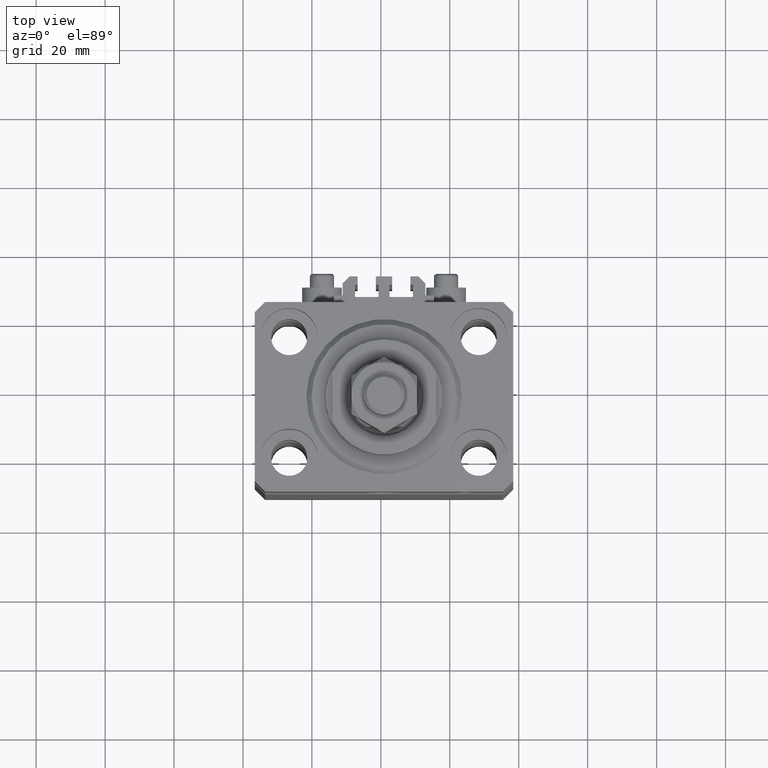
[diagram: clean part render]
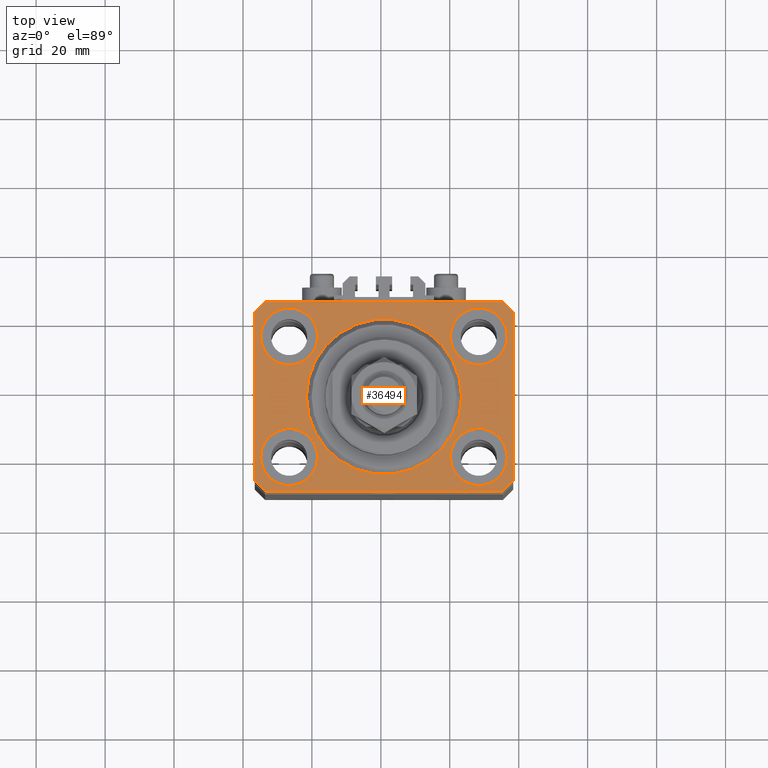
[diagram: same view with one face highlighted and labeled with its STEP entity id]
A machine part, top view. The second image highlights one B-rep face of the part: STEP entity #36494.
In plain terms, the highlighted planar face has unit normal (0, 0, 1).
Its self-contained STEP definition (entity closure, byte-faithful):
#118 = CARTESIAN_POINT ( 'NONE',  ( 37.50000000000051870, 24.49999999999995381, 0.000000000000000000 ) ) ;
#530 = EDGE_CURVE ( 'NONE', #8009, #31857, #23695, .T. ) ;
#582 = VECTOR ( 'NONE', #13834, 1000.000000000000114 ) ;
#1285 = CIRCLE ( 'NONE', #22385, 8.249999999999992895 ) ;
#1761 = AXIS2_PLACEMENT_3D ( 'NONE', #43799, #13688, #36226 ) ;
#1985 = DIRECTION ( 'NONE',  ( 0.000000000000000000, 0.000000000000000000, 1.000000000000000000 ) ) ;
#2103 = DIRECTION ( 'NONE',  ( 1.000000000000000000, 0.000000000000000000, 0.000000000000000000 ) ) ;
#2112 = DIRECTION ( 'NONE',  ( 0.000000000000000000, 0.000000000000000000, 1.000000000000000000 ) ) ;
#2346 = CIRCLE ( 'NONE', #25679, 8.250000000000000000 ) ;
#2657 = AXIS2_PLACEMENT_3D ( 'NONE', #42615, #1985, #46758 ) ;
#2873 = EDGE_LOOP ( 'NONE', ( #2945, #16123 ) ) ;
#2913 = EDGE_CURVE ( 'NONE', #31857, #8009, #18949, .T. ) ;
#2945 = ORIENTED_EDGE ( 'NONE', *, *, #31819, .F. ) ;
#2949 = LINE ( 'NONE', #47489, #30922 ) ;
#3358 = CIRCLE ( 'NONE', #26030, 8.250000000000000000 ) ;
#3522 = ORIENTED_EDGE ( 'NONE', *, *, #12716, .T. ) ;
#3660 = ORIENTED_EDGE ( 'NONE', *, *, #35804, .T. ) ;
#4021 = LINE ( 'NONE', #24296, #36244 ) ;
#4198 = VERTEX_POINT ( 'NONE', #19206 ) ;
#4213 = CARTESIAN_POINT ( 'NONE',  ( 27.50000000000000355, -17.50000000000000000, 0.000000000000000000 ) ) ;
#4231 = DIRECTION ( 'NONE',  ( 0.000000000000000000, -1.000000000000000000, 0.000000000000000000 ) ) ;
#4424 = DIRECTION ( 'NONE',  ( 0.000000000000000000, 0.000000000000000000, 1.000000000000000000 ) ) ;
#4618 = ORIENTED_EDGE ( 'NONE', *, *, #17683, .T. ) ;
#4921 = VERTEX_POINT ( 'NONE', #46656 ) ;
#6250 = LINE ( 'NONE', #47368, #582 ) ;
#6265 = ORIENTED_EDGE ( 'NONE', *, *, #22974, .F. ) ;
#6533 = CIRCLE ( 'NONE', #40153, 22.50000000000000355 ) ;
#7059 = CIRCLE ( 'NONE', #35997, 8.250000000000000000 ) ;
#7372 = EDGE_LOOP ( 'NONE', ( #20623, #19519 ) ) ;
#7616 = CARTESIAN_POINT ( 'NONE',  ( 27.50000000000000355, -17.50000000000000000, 0.000000000000000000 ) ) ;
#7783 = DIRECTION ( 'NONE',  ( -0.7071067811865356934, 0.7071067811865594521, 0.000000000000000000 ) ) ;
#7807 = EDGE_LOOP ( 'NONE', ( #32248, #4618, #3522, #30636, #18977, #45759, #3660, #8340 ) ) ;
#7892 = CARTESIAN_POINT ( 'NONE',  ( -37.49999999999999289, 24.50000000000000000, 0.000000000000000000 ) ) ;
#8009 = VERTEX_POINT ( 'NONE', #34005 ) ;
#8164 = VERTEX_POINT ( 'NONE', #32736 ) ;
#8340 = ORIENTED_EDGE ( 'NONE', *, *, #14072, .T. ) ;
#8850 = CARTESIAN_POINT ( 'NONE',  ( 35.75000000000000711, -17.50000000000000000, 0.000000000000000000 ) ) ;
#9291 = VECTOR ( 'NONE', #30081, 1000.000000000000000 ) ;
#9441 = FACE_OUTER_BOUND ( 'NONE', #7807, .T. ) ;
#9443 = DIRECTION ( 'NONE',  ( 0.000000000000000000, 0.000000000000000000, 1.000000000000000000 ) ) ;
#10262 = VERTEX_POINT ( 'NONE', #37773 ) ;
#10275 = CARTESIAN_POINT ( 'NONE',  ( -35.75000000000000711, -17.50000000000000000, 0.000000000000000000 ) ) ;
#10408 = PLANE ( 'NONE',  #16834 ) ;
#10947 = CARTESIAN_POINT ( 'NONE',  ( -27.50000000000000355, -17.50000000000000000, 0.000000000000000000 ) ) ;
#12716 = EDGE_CURVE ( 'NONE', #21605, #20032, #42155, .T. ) ;
#13158 = CARTESIAN_POINT ( 'NONE',  ( -37.49999999999999289, -24.50000000000000000, 0.000000000000000000 ) ) ;
#13366 = AXIS2_PLACEMENT_3D ( 'NONE', #16535, #43457, #2103 ) ;
#13464 = DIRECTION ( 'NONE',  ( 1.076236605503979380E-14, 1.000000000000000000, 0.000000000000000000 ) ) ;
#13688 = DIRECTION ( 'NONE',  ( 0.000000000000000000, 0.000000000000000000, 1.000000000000000000 ) ) ;
#13753 = VECTOR ( 'NONE', #38407, 1000.000000000000000 ) ;
#13834 = DIRECTION ( 'NONE',  ( 0.7071067811865474617, 0.7071067811865474617, 0.000000000000000000 ) ) ;
#13942 = EDGE_LOOP ( 'NONE', ( #18354, #46185 ) ) ;
#14072 = EDGE_CURVE ( 'NONE', #32170, #4921, #34472, .T. ) ;
#14400 = ORIENTED_EDGE ( 'NONE', *, *, #27549, .F. ) ;
#14733 = DIRECTION ( 'NONE',  ( 1.000000000000000000, 0.000000000000000000, 0.000000000000000000 ) ) ;
#16123 = ORIENTED_EDGE ( 'NONE', *, *, #32613, .F. ) ;
#16464 = EDGE_CURVE ( 'NONE', #25019, #21398, #2346, .T. ) ;
#16535 = CARTESIAN_POINT ( 'NONE',  ( 27.49999999999999645, 17.50000000000001066, 0.000000000000000000 ) ) ;
#16549 = DIRECTION ( 'NONE',  ( 1.000000000000000000, 0.000000000000000000, 0.000000000000000000 ) ) ;
#16834 = AXIS2_PLACEMENT_3D ( 'NONE', #35651, #2112, #17035 ) ;
#17035 = DIRECTION ( 'NONE',  ( 1.000000000000000000, 0.000000000000000000, -0.000000000000000000 ) ) ;
#17275 = CARTESIAN_POINT ( 'NONE',  ( -27.50000000000000355, 17.50000000000000000, 0.000000000000000000 ) ) ;
#17375 = EDGE_CURVE ( 'NONE', #4921, #31772, #21642, .T. ) ;
#17490 = DIRECTION ( 'NONE',  ( -1.000000000000000000, 0.000000000000000000, 0.000000000000000000 ) ) ;
#17683 = EDGE_CURVE ( 'NONE', #31772, #21605, #38134, .T. ) ;
#18313 = VERTEX_POINT ( 'NONE', #20140 ) ;
#18354 = ORIENTED_EDGE ( 'NONE', *, *, #16464, .F. ) ;
#18560 = DIRECTION ( 'NONE',  ( 1.000000000000000000, 0.000000000000000000, 0.000000000000000000 ) ) ;
#18949 = CIRCLE ( 'NONE', #1761, 8.250000000000000000 ) ;
#18977 = ORIENTED_EDGE ( 'NONE', *, *, #37014, .T. ) ;
#19206 = CARTESIAN_POINT ( 'NONE',  ( -19.25000000000000355, 17.50000000000000000, 0.000000000000000000 ) ) ;
#19519 = ORIENTED_EDGE ( 'NONE', *, *, #2913, .F. ) ;
#20032 = VERTEX_POINT ( 'NONE', #13158 ) ;
#20140 = CARTESIAN_POINT ( 'NONE',  ( -34.49999999999998579, -27.49999999999999645, 0.000000000000000000 ) ) ;
#20452 = EDGE_LOOP ( 'NONE', ( #6265, #27902 ) ) ;
#20623 = ORIENTED_EDGE ( 'NONE', *, *, #530, .F. ) ;
#20823 = CARTESIAN_POINT ( 'NONE',  ( 35.74999999999999289, 17.50000000000001066, 0.000000000000000000 ) ) ;
#20921 = EDGE_CURVE ( 'NONE', #10262, #4198, #7059, .T. ) ;
#21398 = VERTEX_POINT ( 'NONE', #33614 ) ;
#21605 = VERTEX_POINT ( 'NONE', #44080 ) ;
#21642 = LINE ( 'NONE', #25314, #35092 ) ;
#22087 = DIRECTION ( 'NONE',  ( 0.000000000000000000, 0.000000000000000000, 1.000000000000000000 ) ) ;
#22385 = AXIS2_PLACEMENT_3D ( 'NONE', #37286, #26496, #40482 ) ;
#22514 = CARTESIAN_POINT ( 'NONE',  ( 19.25000000000000000, 17.50000000000001066, 0.000000000000000000 ) ) ;
#22546 = DIRECTION ( 'NONE',  ( 1.000000000000000000, 0.000000000000000000, 0.000000000000000000 ) ) ;
#22974 = EDGE_CURVE ( 'NONE', #43809, #36854, #24305, .T. ) ;
#23695 = CIRCLE ( 'NONE', #31544, 8.250000000000000000 ) ;
#24248 = DIRECTION ( 'NONE',  ( 0.000000000000000000, 0.000000000000000000, 1.000000000000000000 ) ) ;
#24296 = CARTESIAN_POINT ( 'NONE',  ( -37.49999999999999289, -24.50000000000000000, 0.000000000000000000 ) ) ;
#24305 = CIRCLE ( 'NONE', #13366, 8.249999999999992895 ) ;
#25019 = VERTEX_POINT ( 'NONE', #8850 ) ;
#25314 = CARTESIAN_POINT ( 'NONE',  ( 34.50000000000056843, 27.50000000000000000, 0.000000000000000000 ) ) ;
#25346 = FACE_BOUND ( 'NONE', #2873, .T. ) ;
#25679 = AXIS2_PLACEMENT_3D ( 'NONE', #7616, #4424, #22546 ) ;
#26030 = AXIS2_PLACEMENT_3D ( 'NONE', #27302, #31716, #46385 ) ;
#26496 = DIRECTION ( 'NONE',  ( 0.000000000000000000, 0.000000000000000000, 1.000000000000000000 ) ) ;
#26917 = CARTESIAN_POINT ( 'NONE',  ( -22.50000000000000355, 2.755455298081544383E-15, 0.000000000000000000 ) ) ;
#27302 = CARTESIAN_POINT ( 'NONE',  ( -27.50000000000000355, 17.50000000000000000, 0.000000000000000000 ) ) ;
#27549 = EDGE_CURVE ( 'NONE', #4198, #10262, #3358, .T. ) ;
#27902 = ORIENTED_EDGE ( 'NONE', *, *, #37940, .F. ) ;
#29026 = FACE_BOUND ( 'NONE', #42845, .T. ) ;
#29219 = CIRCLE ( 'NONE', #2657, 22.50000000000000355 ) ;
#29375 = VERTEX_POINT ( 'NONE', #42071 ) ;
#30081 = DIRECTION ( 'NONE',  ( -0.7071067811865471286, -0.7071067811865479058, 0.000000000000000000 ) ) ;
#30320 = CARTESIAN_POINT ( 'NONE',  ( 37.50000000000051870, 24.49999999999995381, 0.000000000000000000 ) ) ;
#30636 = ORIENTED_EDGE ( 'NONE', *, *, #31376, .T. ) ;
#30922 = VECTOR ( 'NONE', #13464, 1000.000000000000000 ) ;
#31313 = LINE ( 'NONE', #35716, #13753 ) ;
#31366 = CARTESIAN_POINT ( 'NONE',  ( 0.000000000000000000, 0.000000000000000000, 0.000000000000000000 ) ) ;
#31376 = EDGE_CURVE ( 'NONE', #20032, #18313, #4021, .T. ) ;
#31544 = AXIS2_PLACEMENT_3D ( 'NONE', #10947, #41077, #18560 ) ;
#31716 = DIRECTION ( 'NONE',  ( 0.000000000000000000, 0.000000000000000000, 1.000000000000000000 ) ) ;
#31772 = VERTEX_POINT ( 'NONE', #46268 ) ;
#31819 = EDGE_CURVE ( 'NONE', #40067, #48267, #29219, .T. ) ;
#31853 = VECTOR ( 'NONE', #4231, 1000.000000000000000 ) ;
#31857 = VERTEX_POINT ( 'NONE', #10275 ) ;
#32170 = VERTEX_POINT ( 'NONE', #118 ) ;
#32248 = ORIENTED_EDGE ( 'NONE', *, *, #17375, .T. ) ;
#32459 = FACE_BOUND ( 'NONE', #20452, .T. ) ;
#32613 = EDGE_CURVE ( 'NONE', #48267, #40067, #6533, .T. ) ;
#32736 = CARTESIAN_POINT ( 'NONE',  ( 37.49999999999999289, -24.50000000000000000, 0.000000000000000000 ) ) ;
#33614 = CARTESIAN_POINT ( 'NONE',  ( 19.25000000000000000, -17.50000000000000000, 0.000000000000000000 ) ) ;
#34005 = CARTESIAN_POINT ( 'NONE',  ( -19.25000000000000355, -17.50000000000000000, 0.000000000000000000 ) ) ;
#34472 = LINE ( 'NONE', #30320, #45245 ) ;
#35092 = VECTOR ( 'NONE', #17490, 1000.000000000000000 ) ;
#35579 = DIRECTION ( 'NONE',  ( 0.7071067811865483499, -0.7071067811865466846, 0.000000000000000000 ) ) ;
#35651 = CARTESIAN_POINT ( 'NONE',  ( 0.000000000000000000, 0.000000000000000000, 0.000000000000000000 ) ) ;
#35716 = CARTESIAN_POINT ( 'NONE',  ( -34.49999999999998579, -27.49999999999999645, 0.000000000000000000 ) ) ;
#35804 = EDGE_CURVE ( 'NONE', #8164, #32170, #2949, .T. ) ;
#35997 = AXIS2_PLACEMENT_3D ( 'NONE', #17275, #9443, #16549 ) ;
#36123 = CARTESIAN_POINT ( 'NONE',  ( 22.50000000000000355, 0.000000000000000000, 0.000000000000000000 ) ) ;
#36226 = DIRECTION ( 'NONE',  ( 1.000000000000000000, 0.000000000000000000, 0.000000000000000000 ) ) ;
#36244 = VECTOR ( 'NONE', #35579, 1000.000000000000000 ) ;
#36494 = ADVANCED_FACE ( 'NONE', ( #46887, #47134, #32459, #29026, #25346, #9441 ), #10408, .T. ) ;
#36854 = VERTEX_POINT ( 'NONE', #22514 ) ;
#37014 = EDGE_CURVE ( 'NONE', #18313, #29375, #31313, .T. ) ;
#37286 = CARTESIAN_POINT ( 'NONE',  ( 27.49999999999999645, 17.50000000000001066, 0.000000000000000000 ) ) ;
#37545 = CIRCLE ( 'NONE', #46129, 8.250000000000000000 ) ;
#37773 = CARTESIAN_POINT ( 'NONE',  ( -35.75000000000000711, 17.50000000000000000, 0.000000000000000000 ) ) ;
#37940 = EDGE_CURVE ( 'NONE', #36854, #43809, #1285, .T. ) ;
#38134 = LINE ( 'NONE', #44750, #9291 ) ;
#38407 = DIRECTION ( 'NONE',  ( 1.000000000000000000, 0.000000000000000000, 0.000000000000000000 ) ) ;
#40067 = VERTEX_POINT ( 'NONE', #36123 ) ;
#40153 = AXIS2_PLACEMENT_3D ( 'NONE', #31366, #24248, #46275 ) ;
#40207 = EDGE_CURVE ( 'NONE', #29375, #8164, #6250, .T. ) ;
#40482 = DIRECTION ( 'NONE',  ( 1.000000000000000000, 0.000000000000000000, 0.000000000000000000 ) ) ;
#41077 = DIRECTION ( 'NONE',  ( 0.000000000000000000, 0.000000000000000000, 1.000000000000000000 ) ) ;
#42071 = CARTESIAN_POINT ( 'NONE',  ( 34.49999999999999289, -27.49999999999999645, 0.000000000000000000 ) ) ;
#42155 = LINE ( 'NONE', #7892, #31853 ) ;
#42615 = CARTESIAN_POINT ( 'NONE',  ( 0.000000000000000000, 0.000000000000000000, 0.000000000000000000 ) ) ;
#42845 = EDGE_LOOP ( 'NONE', ( #14400, #48370 ) ) ;
#43457 = DIRECTION ( 'NONE',  ( 0.000000000000000000, 0.000000000000000000, 1.000000000000000000 ) ) ;
#43799 = CARTESIAN_POINT ( 'NONE',  ( -27.50000000000000355, -17.50000000000000000, 0.000000000000000000 ) ) ;
#43809 = VERTEX_POINT ( 'NONE', #20823 ) ;
#44080 = CARTESIAN_POINT ( 'NONE',  ( -37.49999999999999289, 24.50000000000000000, 0.000000000000000000 ) ) ;
#44356 = EDGE_CURVE ( 'NONE', #21398, #25019, #37545, .T. ) ;
#44750 = CARTESIAN_POINT ( 'NONE',  ( -34.49999999999999289, 27.50000000000000000, 0.000000000000000000 ) ) ;
#45245 = VECTOR ( 'NONE', #7783, 1000.000000000000114 ) ;
#45759 = ORIENTED_EDGE ( 'NONE', *, *, #40207, .T. ) ;
#46129 = AXIS2_PLACEMENT_3D ( 'NONE', #4213, #22087, #14733 ) ;
#46185 = ORIENTED_EDGE ( 'NONE', *, *, #44356, .F. ) ;
#46268 = CARTESIAN_POINT ( 'NONE',  ( -34.49999999999999289, 27.50000000000000000, 0.000000000000000000 ) ) ;
#46275 = DIRECTION ( 'NONE',  ( 1.000000000000000000, 0.000000000000000000, 0.000000000000000000 ) ) ;
#46385 = DIRECTION ( 'NONE',  ( 1.000000000000000000, 0.000000000000000000, 0.000000000000000000 ) ) ;
#46656 = CARTESIAN_POINT ( 'NONE',  ( 34.50000000000056843, 27.50000000000000000, 0.000000000000000000 ) ) ;
#46758 = DIRECTION ( 'NONE',  ( 1.000000000000000000, 0.000000000000000000, 0.000000000000000000 ) ) ;
#46887 = FACE_BOUND ( 'NONE', #7372, .T. ) ;
#47134 = FACE_BOUND ( 'NONE', #13942, .T. ) ;
#47368 = CARTESIAN_POINT ( 'NONE',  ( 34.49999999999999289, -27.49999999999999645, 0.000000000000000000 ) ) ;
#47489 = CARTESIAN_POINT ( 'NONE',  ( 37.49999999999999289, -24.50000000000000000, 0.000000000000000000 ) ) ;
#48267 = VERTEX_POINT ( 'NONE', #26917 ) ;
#48370 = ORIENTED_EDGE ( 'NONE', *, *, #20921, .F. ) ;